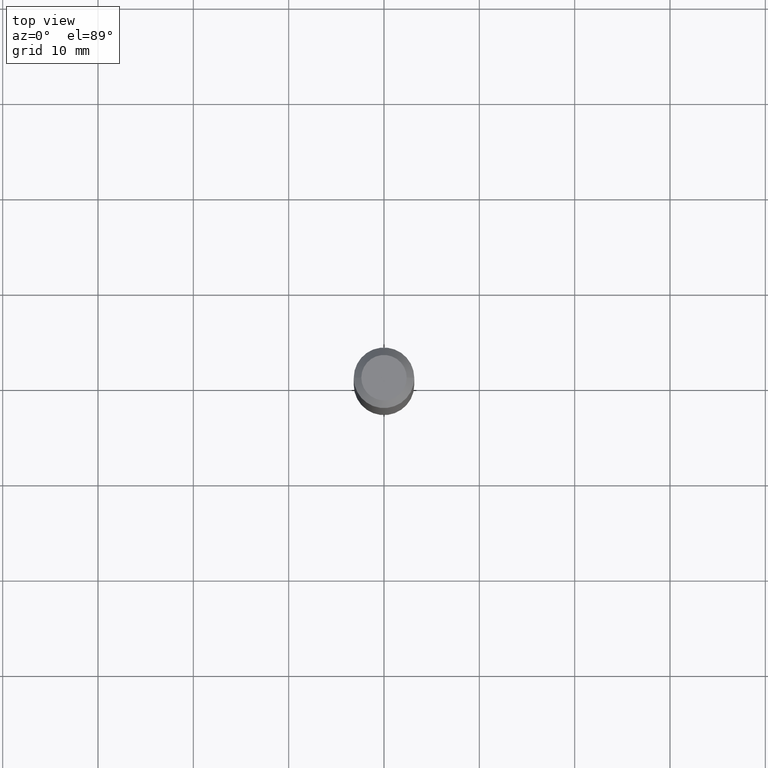
[diagram: clean part render]
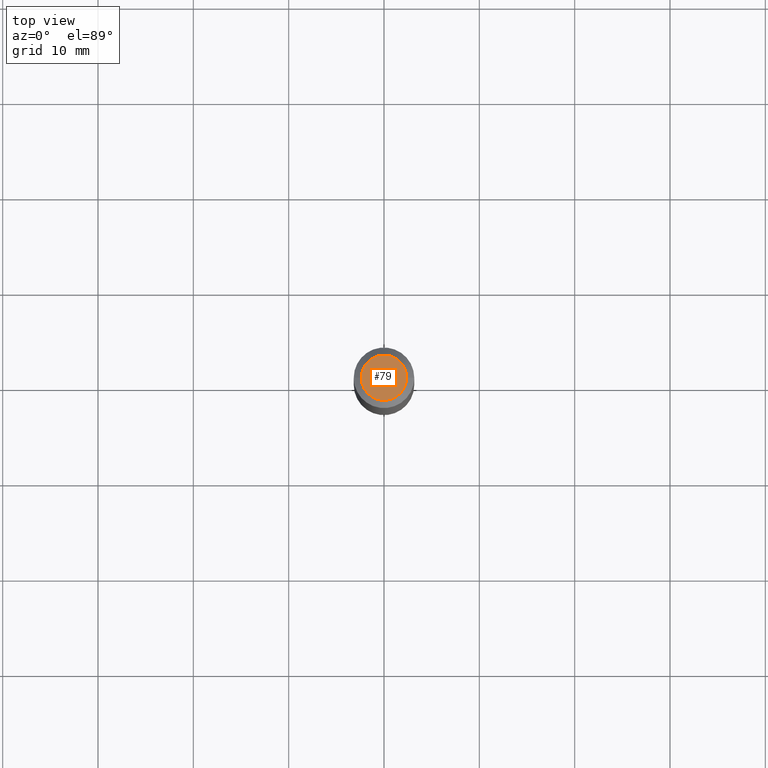
[diagram: same view with one face highlighted and labeled with its STEP entity id]
A machine part, top view. The second image highlights one B-rep face of the part: STEP entity #79.
In plain terms, the highlighted planar face has unit normal (0, -0, -1).
Its self-contained STEP definition (entity closure, byte-faithful):
#31 = ORIENTED_EDGE ( 'NONE', *, *, #263, .T. ) ;
#72 = FACE_OUTER_BOUND ( 'NONE', #230, .T. ) ;
#79 = ADVANCED_FACE ( 'NONE', ( #72 ), #210, .F. ) ;
#119 = AXIS2_PLACEMENT_3D ( 'NONE', #396, #137, #276 ) ;
#124 = CARTESIAN_POINT ( 'NONE',  ( -0.09375000000000006939, 7.092071469525110684E-16, -2.985923209265061018E-16 ) ) ;
#125 = ORIENTED_EDGE ( 'NONE', *, *, #168, .T. ) ;
#137 = DIRECTION ( 'NONE',  ( 2.438088387897960049E-29, -3.491481338843145188E-15, -1.000000000000000000 ) ) ;
#168 = EDGE_CURVE ( 'NONE', #260, #380, #437, .T. ) ;
#205 = AXIS2_PLACEMENT_3D ( 'NONE', #440, #259, #407 ) ;
#210 = PLANE ( 'NONE',  #119 ) ;
#230 = EDGE_LOOP ( 'NONE', ( #125, #31 ) ) ;
#256 = AXIS2_PLACEMENT_3D ( 'NONE', #264, #378, #262 ) ;
#259 = DIRECTION ( 'NONE',  ( -2.445468806185136597E-29, 3.491481338843145583E-15, 1.000000000000000000 ) ) ;
#260 = VERTEX_POINT ( 'NONE', #124 ) ;
#262 = DIRECTION ( 'NONE',  ( 1.000000000000000000, -6.982962677686266711E-15, 4.852736867747362844E-29 ) ) ;
#263 = EDGE_CURVE ( 'NONE', #380, #260, #416, .T. ) ;
#264 = CARTESIAN_POINT ( 'NONE',  ( 7.301982065921803301E-45, -1.042529516436742983E-30, -2.985923209265013193E-16 ) ) ;
#276 = DIRECTION ( 'NONE',  ( -1.000000000000000000, 6.982962677686265922E-15, -4.876176775795935793E-29 ) ) ;
#308 = CARTESIAN_POINT ( 'NONE',  ( 0.09375000000000006939, -8.049213644256865052E-16, -2.985923209264961917E-16 ) ) ;
#378 = DIRECTION ( 'NONE',  ( -2.445468806185136597E-29, 3.491481338843145583E-15, 1.000000000000000000 ) ) ;
#380 = VERTEX_POINT ( 'NONE', #308 ) ;
#396 = CARTESIAN_POINT ( 'NONE',  ( 3.650991032960901650E-45, -5.212647582183714915E-31, -1.492961604632506596E-16 ) ) ;
#407 = DIRECTION ( 'NONE',  ( 1.000000000000000000, -6.982962677686266711E-15, 4.852736867747362844E-29 ) ) ;
#416 = CIRCLE ( 'NONE', #256, 0.09375000000000006939 ) ;
#437 = CIRCLE ( 'NONE', #205, 0.09375000000000006939 ) ;
#440 = CARTESIAN_POINT ( 'NONE',  ( 7.301982065921803301E-45, -1.042529516436742983E-30, -2.985923209265013193E-16 ) ) ;